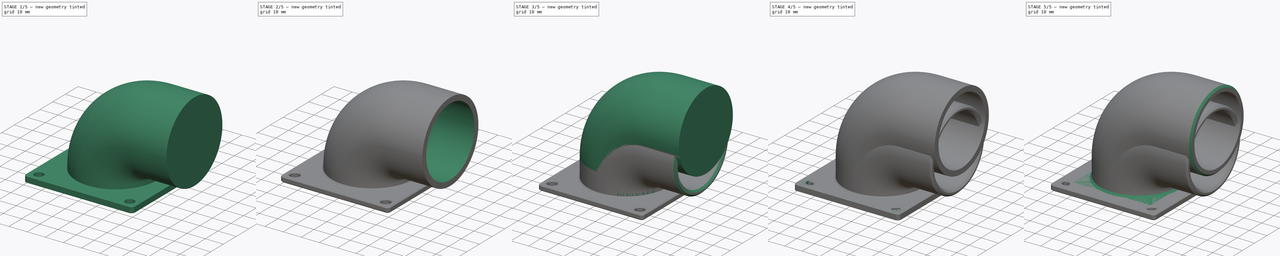
[diagram: build sequence overview — one tinted view per stage of 5, left to right]
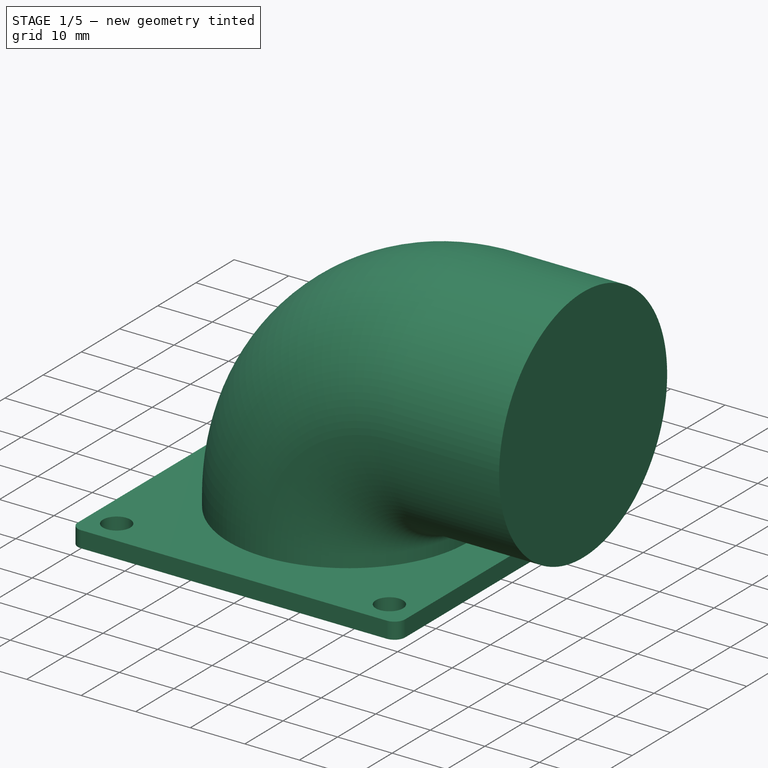
[diagram: stage 1 of 5 — iso view after this stage's code; geometry added in this stage tinted green]
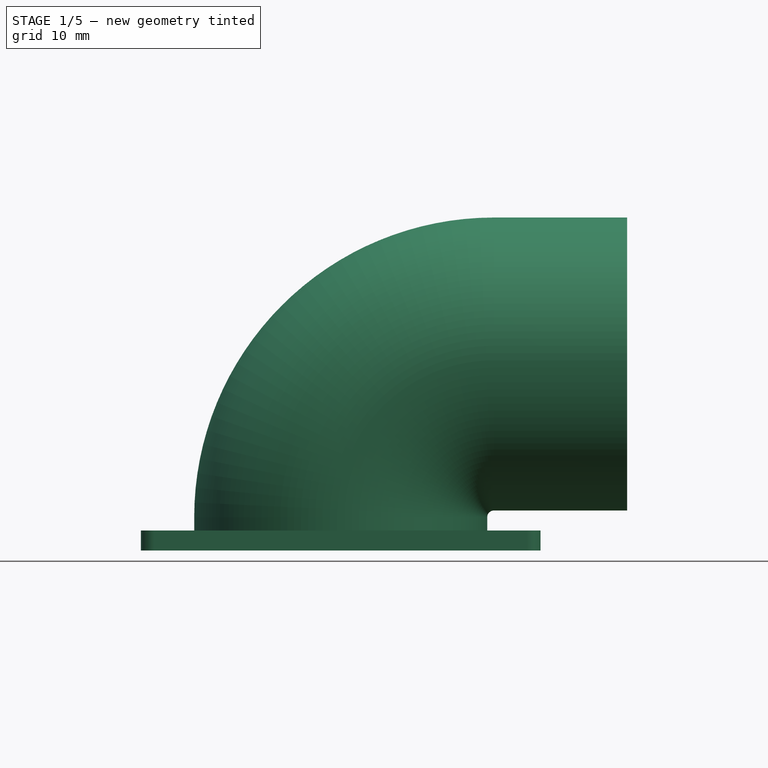
[diagram: stage 1 of 5 — front view after this stage's code; geometry added in this stage tinted green]
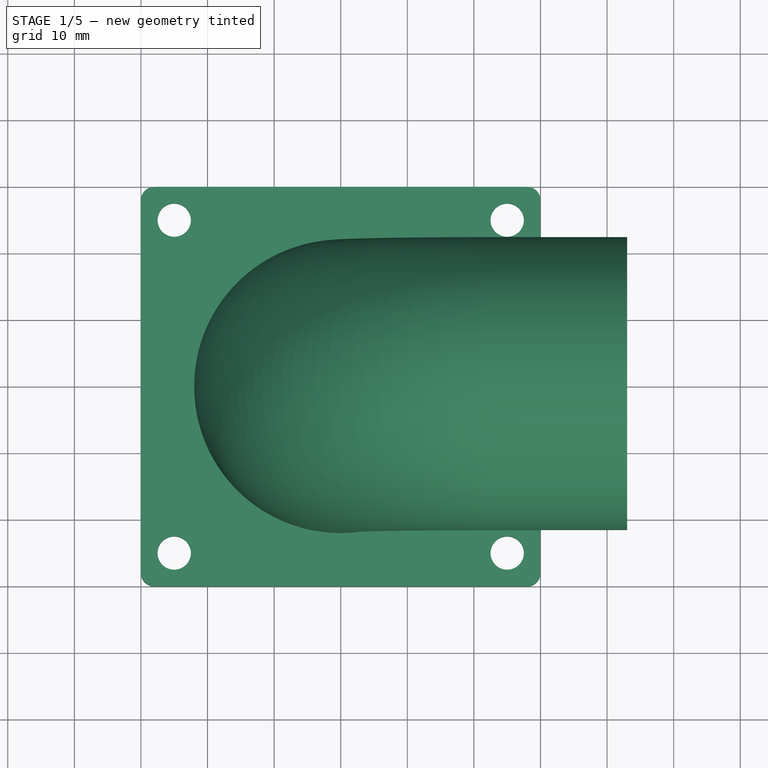
[diagram: stage 1 of 5 — top view after this stage's code; geometry added in this stage tinted green]
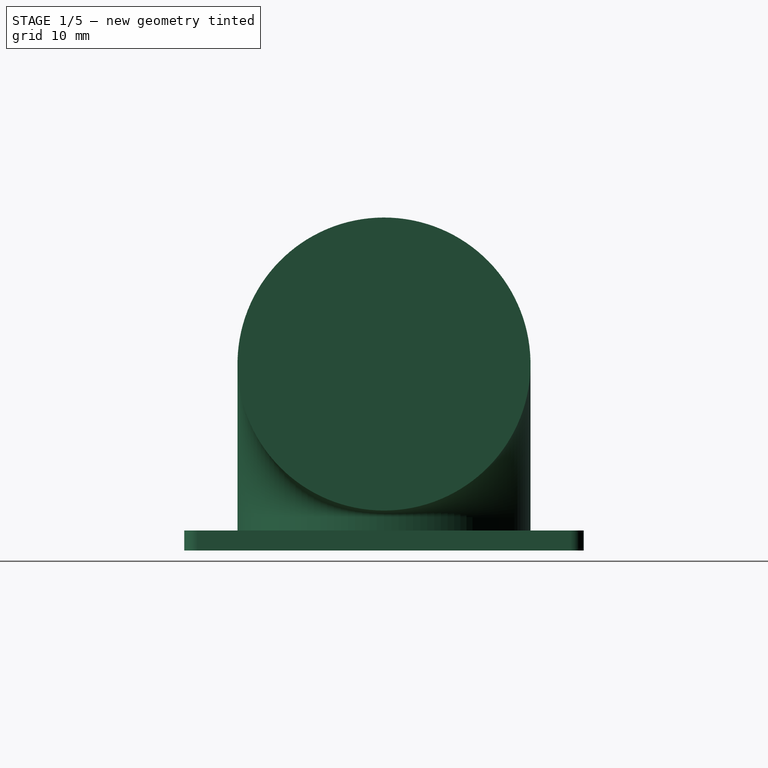
[diagram: stage 1 of 5 — right view after this stage's code; geometry added in this stage tinted green]
FCSTD DOCUMENT  (FreeCAD 1.2R20260526 (Git shallow))
Label: battery box mods
License: All rights reserved
LicenseURL: http://en.wikipedia.org/wiki/All_rights_reserved
objects: Sketcher::SketchObject×8, Part::Sweep×4, Part::Chamfer×4, Part::MultiFuse×2, Part::Cut×2, PartDesign::Pad×1, PartDesign::Body×1, PartDesign::Chamfer×1, Part::Extrusion×1, App::Point×1
note: 36 computed .brp shape members not serialized (recipe doc carries the construction recipe); baked Part::Feature solids carry a one-line shape summary decoded from their .brp

FEATURE [Sketcher::SketchObject] Sketch009
  ArcFitTolerance = 0
  ExternalTypes = [0]
  FullyConstrained = true
  MakeInternals = false
  MapMode = 5
  sketch-geometry (1):
    g0: Circle CenterX=0 CenterY=0 CenterZ=0 NormalX=0 NormalY=0 NormalZ=1 AngleXU=0 Radius=22
  constraints (2):
    c: Coincident(g0,g-1)
    c: Diameter(g0) = 44
FEATURE [Sketcher::SketchObject] Sketch010
  ArcFitTolerance = 0
  ExternalTypes = [0]
  FullyConstrained = true
  MakeInternals = false
  MapMode = 5
  Placement = pos=(0,0,0) rot=(1,0,0;1.5708rad)
  sketch-geometry (3):
    g0: LineSegment StartX=0 StartY=0 StartZ=0 EndX=0 EndY=5 EndZ=0
    g1: ArcOfCircle CenterX=23 CenterY=5 CenterZ=0 NormalX=0 NormalY=0 NormalZ=1 AngleXU=0 Radius=23 StartAngle=1.5708 EndAngle=3.14159
    g2: LineSegment StartX=23 StartY=28 StartZ=0 EndX=43 EndY=28 EndZ=0
  constraints (8):
    c: Coincident(g-1,g0)
    c: PointOnObject(g0,g-2)
    c: Tangent(g0,g1) = 1.5708
    c: Tangent(g1,g2) = 1.5708
    c: Horizontal(g2)
    c: DistanceY(g0,g1) = 5
    c: DistanceY(g1,g1) = 23
    c: DistanceX(g2,g2) = 20
FEATURE [Part::Sweep] Sweep002  label="outer tube"
  Frenet = true
  Sections = -> [Sketch009]
  Solid = true
  Spine = -> Sketch010
  Transition = 1
FEATURE [Sketcher::SketchObject] Sketch012  label="plate sketch"
  ArcFitTolerance = 0
  ExternalTypes = [0]
  FullyConstrained = true
  MakeInternals = false
  MapMode = 5
  sketch-geometry (20):
    g0: LineSegment StartX=-30 StartY=28 StartZ=0 EndX=-30 EndY=-28 EndZ=0
    g1: LineSegment StartX=-28 StartY=-30 StartZ=0 EndX=28 EndY=-30 EndZ=0
    g2: LineSegment StartX=30 StartY=-28 StartZ=0 EndX=30 EndY=28 EndZ=0
    g3: LineSegment StartX=28 StartY=30 StartZ=0 EndX=-28 EndY=30 EndZ=0
    g4: ArcOfCircle CenterX=28 CenterY=28 CenterZ=0 NormalX=0 NormalY=0 NormalZ=1 AngleXU=0 Radius=2 StartAngle=1.7e-15 EndAngle=1.5708
    g5: GeomPoint [constr] X=30 Y=30 Z=0
    g6: ArcOfCircle CenterX=-28 CenterY=28 CenterZ=0 NormalX=0 NormalY=0 NormalZ=1 AngleXU=0 Radius=2 StartAngle=1.5708 EndAngle=3.14159
    g7: GeomPoint [constr] X=-30 Y=30 Z=0
    g8: ArcOfCircle CenterX=-28 CenterY=-28 CenterZ=0 NormalX=0 NormalY=0 NormalZ=1 AngleXU=0 Radius=2 StartAngle=3.14159 EndAngle=4.71239
    g9: GeomPoint [constr] X=-30 Y=-30 Z=0
    g10: ArcOfCircle CenterX=28 CenterY=-28 CenterZ=0 NormalX=0 NormalY=0 NormalZ=1 AngleXU=0 Radius=2 StartAngle=4.71239 EndAngle=6.28319
    g11: GeomPoint [constr] X=30 Y=-30 Z=0
    g12: Circle CenterX=-25 CenterY=25 CenterZ=0 NormalX=0 NormalY=0 NormalZ=1 AngleXU=0 Radius=2.5
    g13: Circle CenterX=25 CenterY=25 CenterZ=0 NormalX=0 NormalY=0 NormalZ=1 AngleXU=0 Radius=2.5
    g14: Circle CenterX=-25 CenterY=-25 CenterZ=0 NormalX=0 NormalY=0 NormalZ=1 AngleXU=0 Radius=2.5
    g15: Circle CenterX=25 CenterY=-25 CenterZ=0 NormalX=0 NormalY=0 NormalZ=1 AngleXU=0 Radius=2.5
    g16: LineSegment [constr] StartX=-25 StartY=25 StartZ=0 EndX=-25 EndY=-25 EndZ=0
    g17: LineSegment [constr] StartX=-25 StartY=-25 StartZ=0 EndX=25 EndY=-25 EndZ=0
    g18: LineSegment [constr] StartX=25 StartY=-25 StartZ=0 EndX=25 EndY=25 EndZ=0
    g19: LineSegment [constr] StartX=25 StartY=25 StartZ=0 EndX=-25 EndY=25 EndZ=0
  constraints (46):
    c: Vertical(g0)
    c: Vertical(g2)
    c: Horizontal(g1)
    c: Horizontal(g3)
    c: Distance(g7,g5) = 60
    c: Distance(g9,g7) = 60
    c: Symmetric(g9,g5,g-1)
    c: PointOnObject(g5,g3)
    c: PointOnObject(g5,g2)
    c: Tangent(g3,g4) = -1.5708
    c: Tangent(g2,g4) = -1.5708
    c: PointOnObject(g7,g3)
    c: PointOnObject(g7,g0)
    c: Tangent(g3,g6) = -1.5708
    c: Tangent(g0,g6) = -1.5708
    c: PointOnObject(g9,g0)
    c: PointOnObject(g9,g1)
    c: Tangent(g0,g8) = -1.5708
    c: Tangent(g1,g8) = -1.5708
    c: PointOnObject(g11,g1)
    c: PointOnObject(g11,g2)
    c: Tangent(g1,g10) = -1.5708
    c: Tangent(g2,g10) = -1.5708
    c: Equal(g4,g6)
    c: Equal(g4,g8)
    c: Equal(g4,g10)
    c: Radius(g4) = 2
    c: Coincident(g16,g17)
    c: Coincident(g17,g18)
    c: Coincident(g18,g19)
    c: Coincident(g19,g16)
    c: Vertical(g16)
    c: Vertical(g18)
    c: Horizontal(g17)
    c: Horizontal(g19)
    c: Coincident(g16,g12)
    c: Coincident(g18,g13)
    c: Coincident(g15,g17)
    c: Coincident(g16,g14)
    c: Symmetric(g14,g13,g-1)
    c: Equal(g19,g18)
    c: Equal(g12,g13)
    c: Equal(g12,g14)
    c: Equal(g12,g15)
    c: Diameter(g12) = 5
    c: DistanceX(g19,g19) = 50
FEATURE [Part::Extrusion] Extrude  label="plate"
  Base = -> Sketch012
  Dir = (0,0,1)
  DirMode = 2
  FaceMakerClass = Part::FaceMakerBullseye
  FaceMakerMode = 3
  InnerWireTaper = 0
  LengthFwd = 3
  LengthRev = 0
  Solid = true
  Symmetric = false
FEATURE [Part::MultiFuse] Fusion001  label="plate and outer"
  Shapes = -> [Extrude,Sweep002]
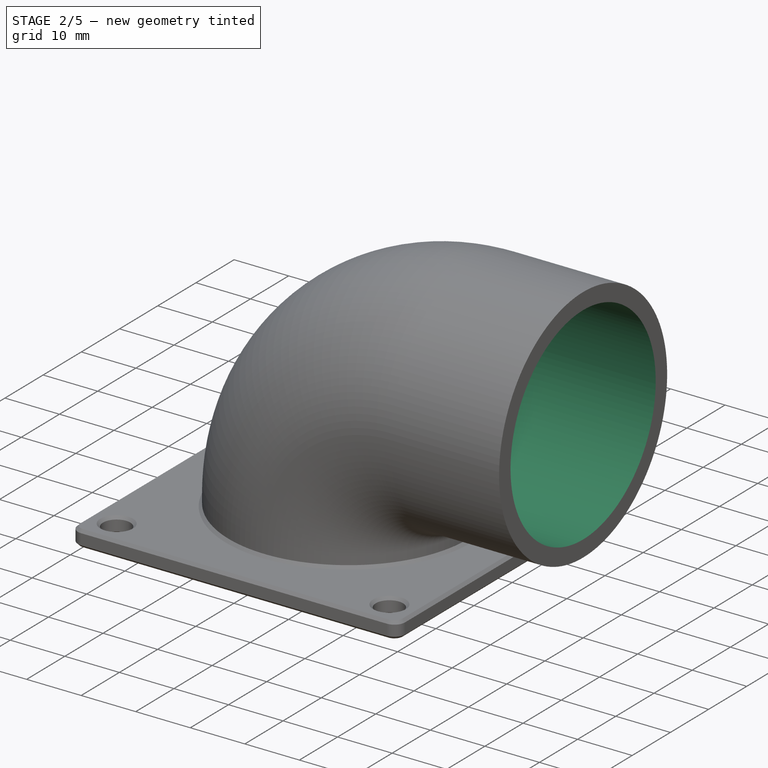
[diagram: stage 2 of 5 — iso view after this stage's code; geometry added in this stage tinted green]
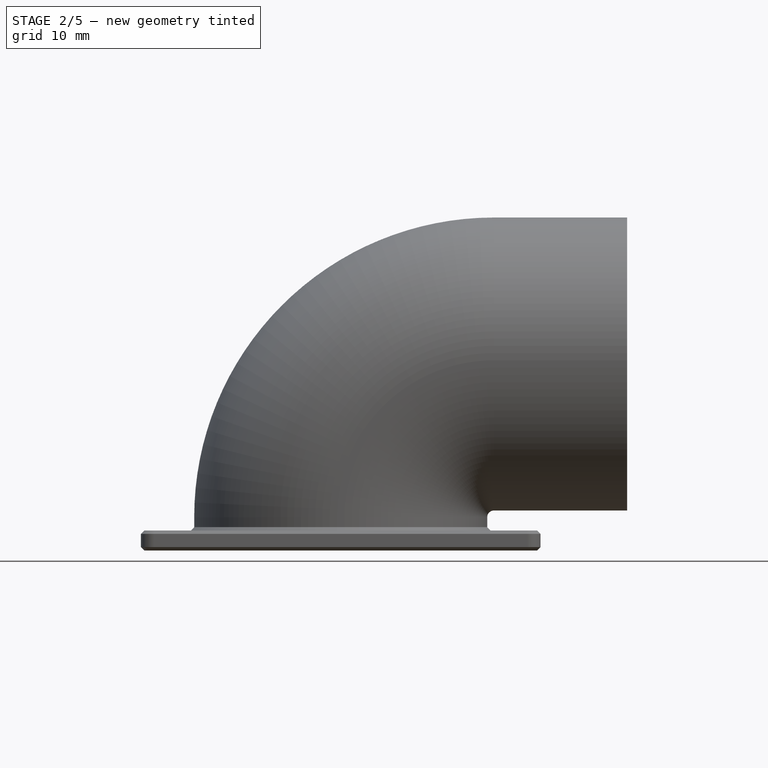
[diagram: stage 2 of 5 — front view after this stage's code; geometry added in this stage tinted green]
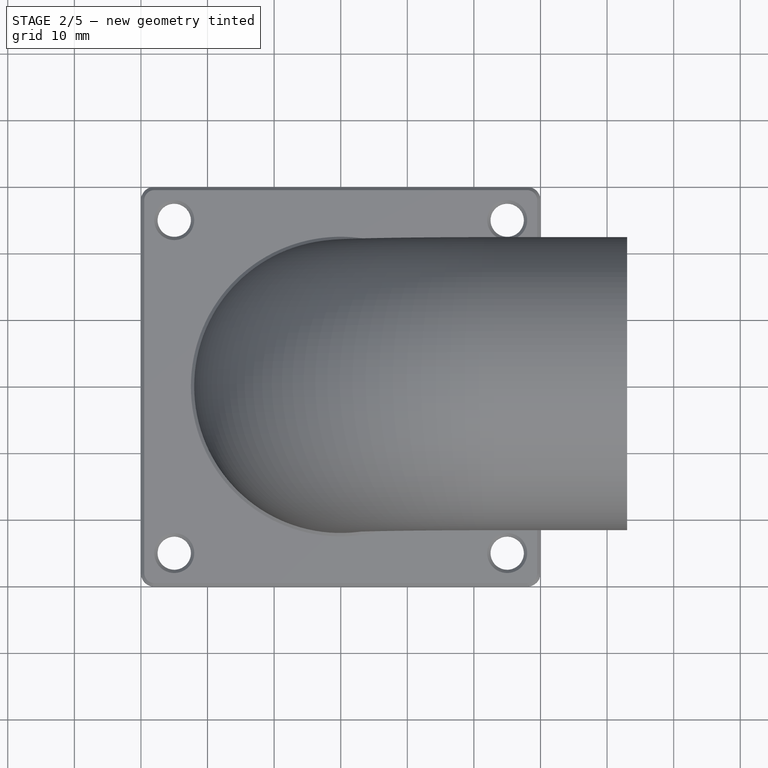
[diagram: stage 2 of 5 — top view after this stage's code; geometry added in this stage tinted green]
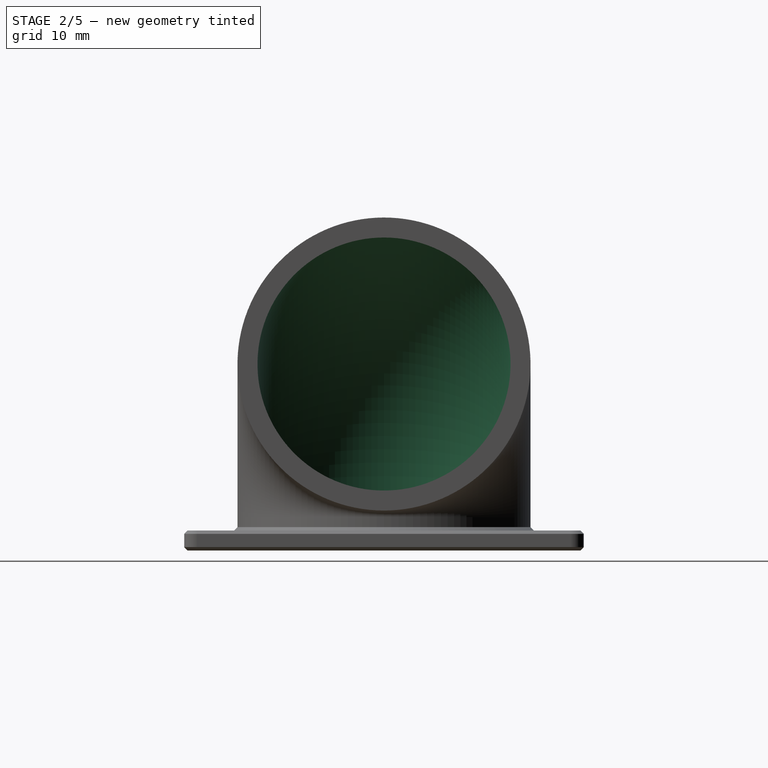
[diagram: stage 2 of 5 — right view after this stage's code; geometry added in this stage tinted green]
FEATURE [Sketcher::SketchObject] Sketch011
  ArcFitTolerance = 0
  ExternalTypes = [0]
  FullyConstrained = true
  MakeInternals = false
  sketch-geometry (1):
    g0: Circle CenterX=0 CenterY=0 CenterZ=0 NormalX=0 NormalY=0 NormalZ=1 AngleXU=0 Radius=19
  constraints (2):
    c: Coincident(g0,g-1)
    c: Diameter(g0) = 38
FEATURE [Part::Sweep] Sweep003  label="inner tube"
  Frenet = true
  Sections = -> [Sketch011]
  Solid = true
  Spine = -> Sketch010
  Transition = 1
FEATURE [Part::Cut] Cut001  label="plate minus inner"
  Base = -> Fusion001
  Refine = true
  Tool = -> Sweep003
FEATURE [Part::Chamfer] Chamfer003
  Base = -> Cut001
  EdgeLinks = -> Cut001 [Edge3,Edge4,Edge6,Edge7,Edge9,Edge10,Edge11,Edge12,Edge13,Edge14,Edge15,Edge16,Edge17,Edge18,Edge19,Edge20,Edge22,Edge24,Edge26,Edge28,Edge29,Edge31,Edge33,Edge35,Edge37,Edge46]
  Edges = 26 edges r=0.5: [Edge3,Edge4,Edge6,Edge7,Edge9,Edge10,Edge11,Edge12,Edge13,Edge14,Edge15,Edge16,Edge17,Edge18,Edge19,Edge20,Edge22,Edge24,Edge26,Edge28,Edge29,Edge31,Edge33,Edge35,Edge37,Edge46]
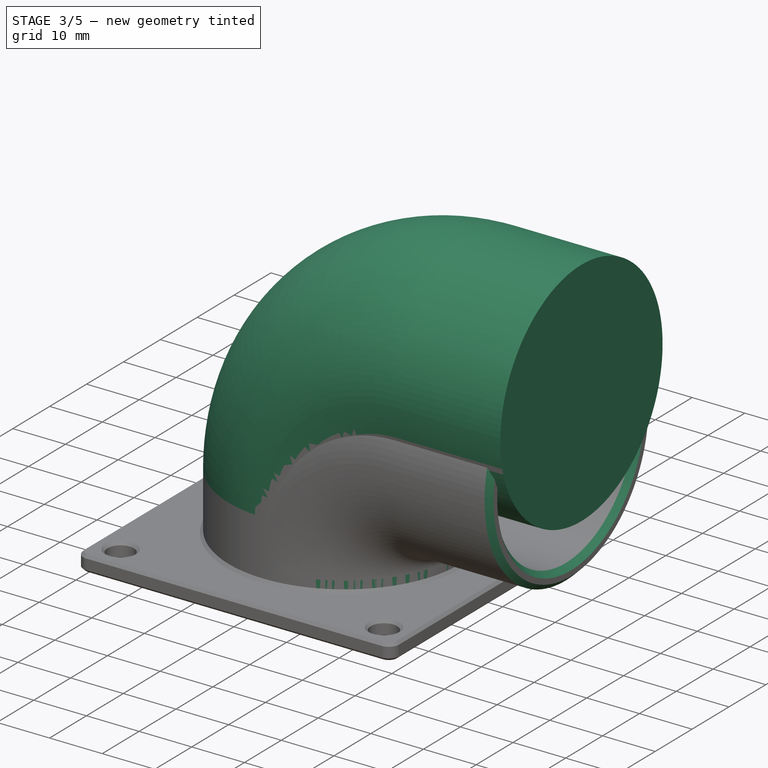
[diagram: stage 3 of 5 — iso view after this stage's code; geometry added in this stage tinted green]
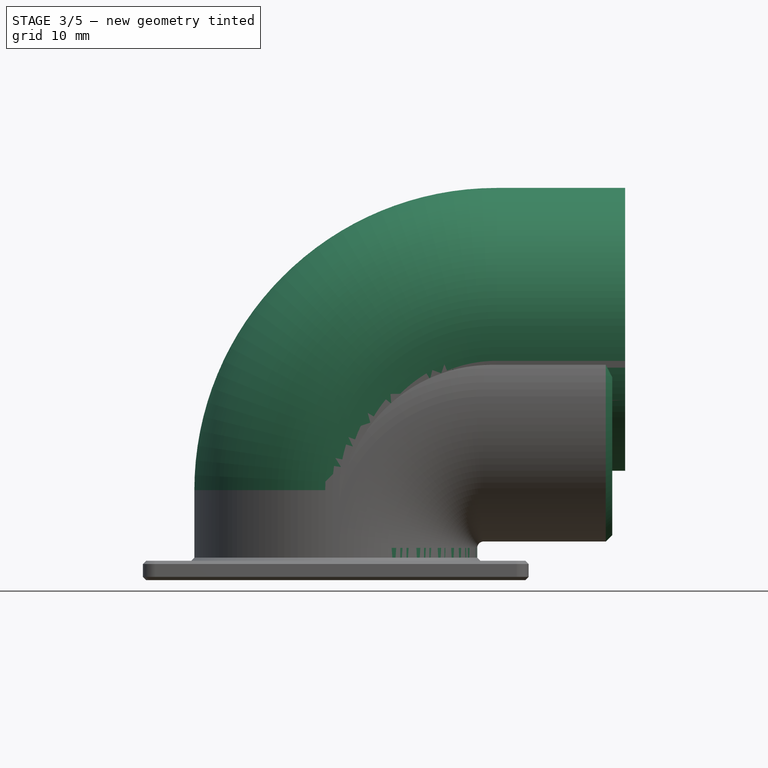
[diagram: stage 3 of 5 — front view after this stage's code; geometry added in this stage tinted green]
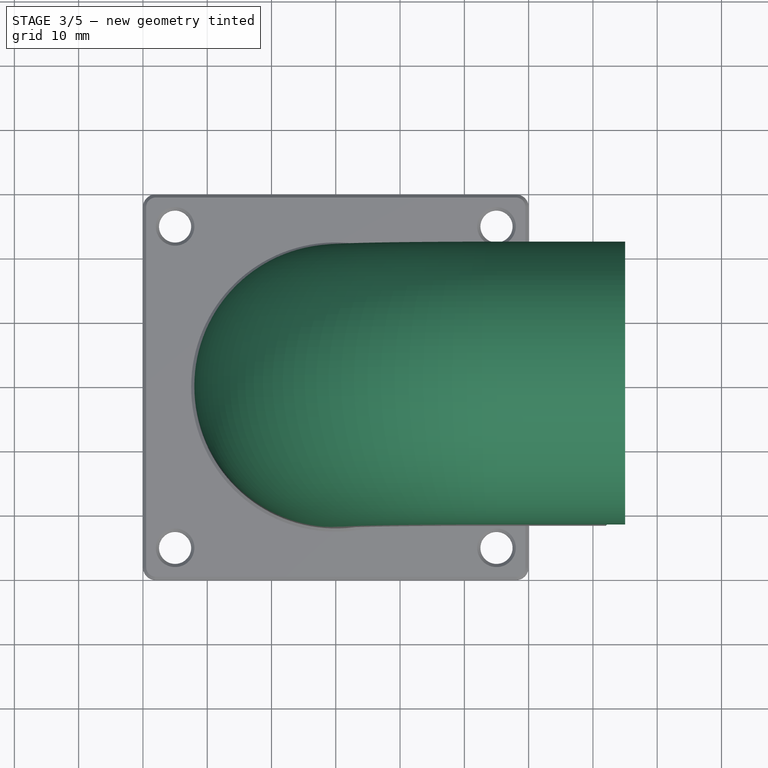
[diagram: stage 3 of 5 — top view after this stage's code; geometry added in this stage tinted green]
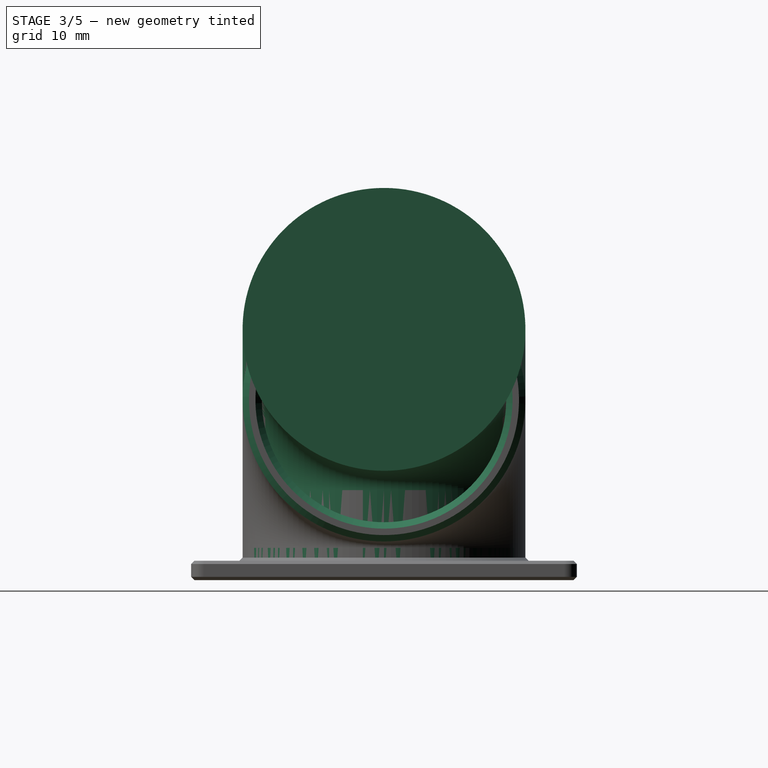
[diagram: stage 3 of 5 — right view after this stage's code; geometry added in this stage tinted green]
FEATURE [Sketcher::SketchObject] Sketch003
  ArcFitTolerance = 0
  ExternalTypes = [0]
  FullyConstrained = true
  MakeInternals = false
  MapMode = 5
  sketch-geometry (1):
    g0: Circle CenterX=0 CenterY=0 CenterZ=0 NormalX=0 NormalY=0 NormalZ=1 AngleXU=0 Radius=22
  constraints (2):
    c: Diameter(g0) = 44
    c: Coincident(g0,g-1)
FEATURE [Sketcher::SketchObject] Sketch004
  ArcFitTolerance = 0
  ExternalTypes = [0]
  FullyConstrained = true
  MakeInternals = false
  MapMode = 5
  Placement = pos=(0,0,0) rot=(1,0,0;1.5708rad)
  sketch-geometry (3):
    g0: LineSegment StartX=0 StartY=0 StartZ=0 EndX=0 EndY=14 EndZ=0
    g1: ArcOfCircle CenterX=25 CenterY=14 CenterZ=0 NormalX=0 NormalY=0 NormalZ=1 AngleXU=0 Radius=25 StartAngle=1.5708 EndAngle=3.14159
    g2: LineSegment StartX=25 StartY=39 StartZ=0 EndX=45 EndY=39 EndZ=0
  constraints (8):
    c: Coincident(g-1,g0)
    c: PointOnObject(g0,g-2)
    c: Tangent(g0,g1) = 1.5708
    c: Tangent(g1,g2) = 1.5708
    c: Angle(g0,g2) = 1.5708
    c: Diameter(g1) = 50
    c: DistanceY(g0,g0) = 14
    c: DistanceX(g2,g2) = 20
FEATURE [Sketcher::SketchObject] Sketch005
  ArcFitTolerance = 0
  ExternalTypes = [0]
  FullyConstrained = true
  MakeInternals = false
  sketch-geometry (1):
    g0: Circle CenterX=0 CenterY=0 CenterZ=0 NormalX=0 NormalY=0 NormalZ=1 AngleXU=0 Radius=19
  constraints (2):
    c: Coincident(g0,g-1)
    c: Diameter(g0) = 38
FEATURE [Part::Sweep] Sweep
  Frenet = true
  Sections = -> [Sketch003]
  Solid = true
  Spine = -> Sketch004 [Edge1,Edge2,Edge3]
  Transition = 1
FEATURE [Part::Sweep] Sweep001
  Frenet = true
  Sections = -> [Sketch005]
  Solid = true
  Spine = -> Sketch004
  Transition = 1
FEATURE [Part::Chamfer] Chamfer004  label="hose bend001"
  Base = -> Chamfer003
  EdgeLinks = -> Chamfer003 [Edge100,Edge102]
  Edges = 2 edges r=1: [Edge100,Edge102]
FEATURE [App::Point] Origin001  label="Origin-Point"
  Role = Origin
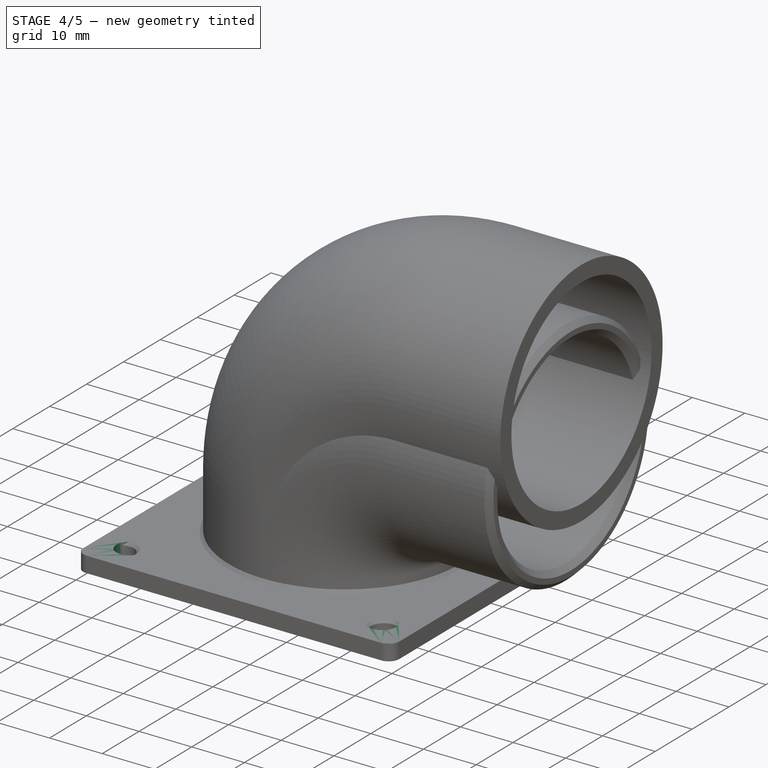
[diagram: stage 4 of 5 — iso view after this stage's code; geometry added in this stage tinted green]
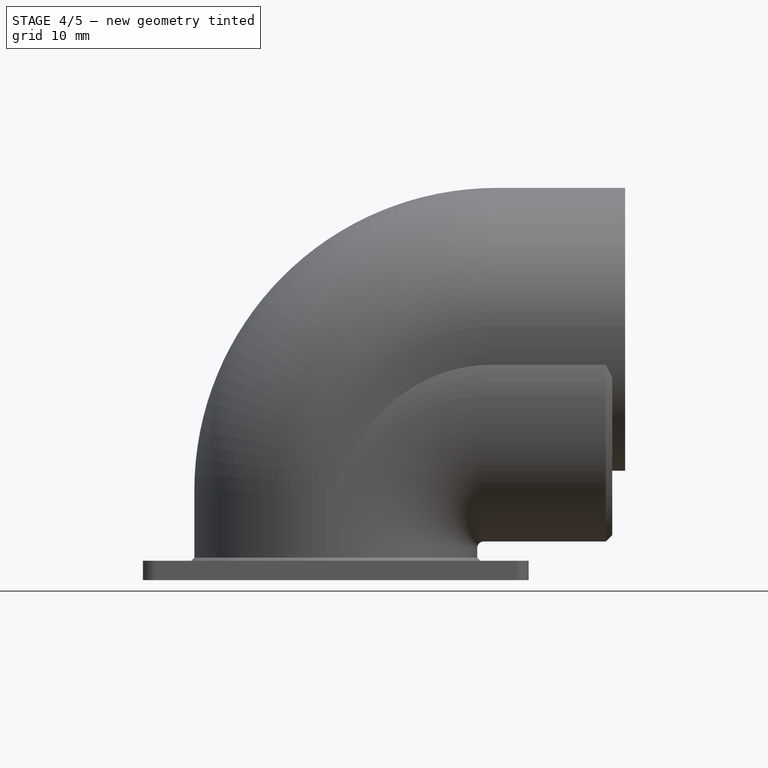
[diagram: stage 4 of 5 — front view after this stage's code; geometry added in this stage tinted green]
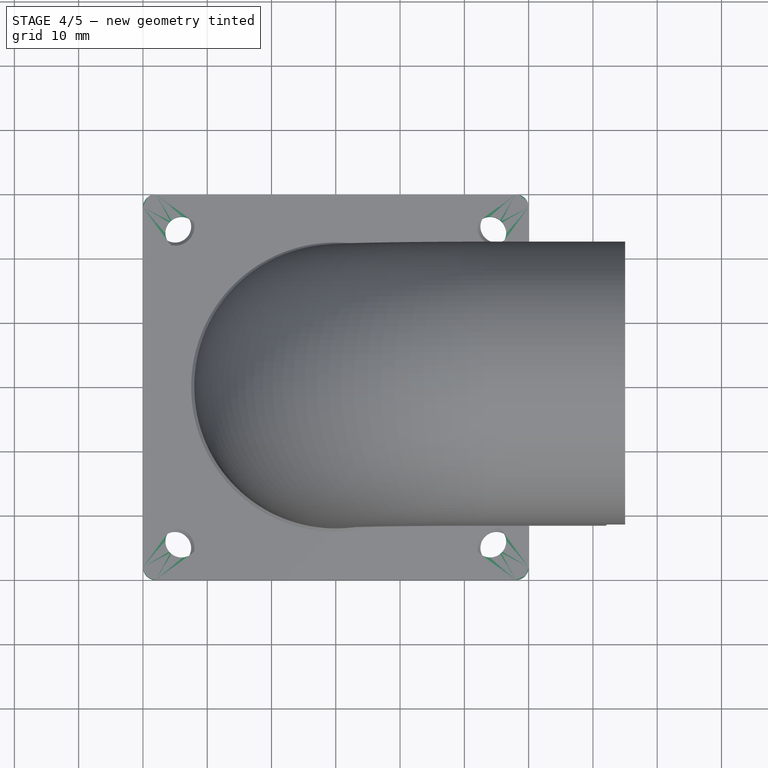
[diagram: stage 4 of 5 — top view after this stage's code; geometry added in this stage tinted green]
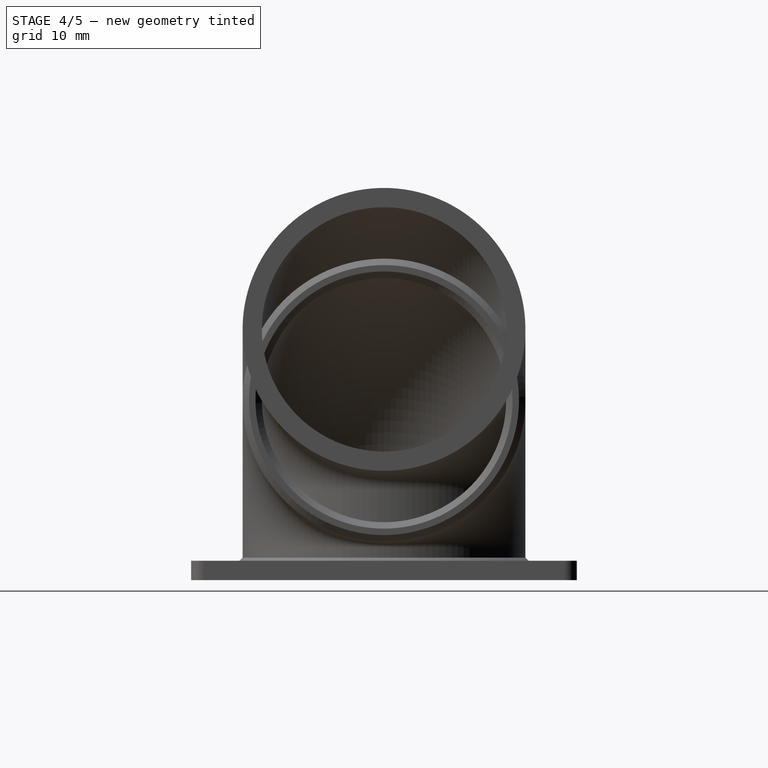
[diagram: stage 4 of 5 — right view after this stage's code; geometry added in this stage tinted green]
FEATURE [Sketcher::SketchObject] Sketch
  ArcFitTolerance = 0
  AttachmentSupport = -> [XY_Plane]
  ExternalTypes = [0]
  FullyConstrained = true
  MakeInternals = false
  MapMode = 5
  sketch-geometry (20):
    g0: LineSegment StartX=-30 StartY=28 StartZ=0 EndX=-30 EndY=-28 EndZ=0
    g1: LineSegment StartX=-28 StartY=-30 StartZ=0 EndX=28 EndY=-30 EndZ=0
    g2: LineSegment StartX=30 StartY=-28 StartZ=0 EndX=30 EndY=28 EndZ=0
    g3: LineSegment StartX=28 StartY=30 StartZ=0 EndX=-28 EndY=30 EndZ=0
    g4: LineSegment [constr] StartX=-24 StartY=24 StartZ=0 EndX=-24 EndY=-24 EndZ=0
    g5: LineSegment [constr] StartX=-24 StartY=-24 StartZ=0 EndX=24 EndY=-24 EndZ=0
    g6: LineSegment [constr] StartX=24 StartY=-24 StartZ=0 EndX=24 EndY=24 EndZ=0
    g7: LineSegment [constr] StartX=24 StartY=24 StartZ=0 EndX=-24 EndY=24 EndZ=0
    g8: Circle CenterX=-24 CenterY=24 CenterZ=0 NormalX=0 NormalY=0 NormalZ=1 AngleXU=0 Radius=2.5
    g9: Circle CenterX=24 CenterY=24 CenterZ=0 NormalX=0 NormalY=0 NormalZ=1 AngleXU=0 Radius=2.5
    g10: Circle CenterX=24 CenterY=-24 CenterZ=0 NormalX=0 NormalY=0 NormalZ=1 AngleXU=0 Radius=2.5
    g11: Circle CenterX=-24 CenterY=-24 CenterZ=0 NormalX=0 NormalY=0 NormalZ=1 AngleXU=0 Radius=2.5
    g12: ArcOfCircle CenterX=-28 CenterY=28 CenterZ=0 NormalX=0 NormalY=0 NormalZ=1 AngleXU=0 Radius=2 StartAngle=1.5708 EndAngle=3.14159
    g13: GeomPoint [constr] X=-30 Y=30 Z=0
    g14: ArcOfCircle CenterX=28 CenterY=28 CenterZ=0 NormalX=0 NormalY=0 NormalZ=1 AngleXU=0 Radius=2 StartAngle=4e-16 EndAngle=1.5708
    g15: GeomPoint [constr] X=30 Y=30 Z=0
    g16: ArcOfCircle CenterX=28 CenterY=-28 CenterZ=0 NormalX=0 NormalY=0 NormalZ=1 AngleXU=0 Radius=2 StartAngle=4.71239 EndAngle=6.28319
    g17: GeomPoint [constr] X=30 Y=-30 Z=0
    g18: ArcOfCircle CenterX=-28 CenterY=-28 CenterZ=0 NormalX=0 NormalY=0 NormalZ=1 AngleXU=0 Radius=2 StartAngle=3.14159 EndAngle=4.71239
    g19: GeomPoint [constr] X=-30 Y=-30 Z=0
  constraints (46):
    c: Vertical(g0)
    c: Vertical(g2)
    c: Horizontal(g1)
    c: Horizontal(g3)
    c: DistanceX(g13,g15) = 60
    c: Symmetric(g19,g15,g-1)
    c: Coincident(g4,g5)
    c: Coincident(g5,g6)
    c: Coincident(g6,g7)
    c: Coincident(g7,g4)
    c: Vertical(g4)
    c: Vertical(g6)
    c: Horizontal(g5)
    c: Horizontal(g7)
    c: Coincident(g8,g4)
    c: Coincident(g9,g6)
    c: Coincident(g10,g5)
    c: Coincident(g11,g4)
    c: Equal(g8,g9)
    c: Equal(g8,g10)
    c: Equal(g8,g11)
    c: Diameter(g8) = 5
    c: Symmetric(g4,g6,g-1)
    c: DistanceY(g4,g13) = 6
    c: DistanceX(g13,g4) = 6
    c: PointOnObject(g13,g3)
    c: PointOnObject(g13,g0)
    c: Tangent(g3,g12) = -1.5708
    c: Tangent(g0,g12) = -1.5708
    c: PointOnObject(g15,g3)
    c: PointOnObject(g15,g2)
    c: Tangent(g3,g14) = -1.5708
    c: Tangent(g2,g14) = -1.5708
    c: PointOnObject(g17,g2)
    c: PointOnObject(g17,g1)
    c: Tangent(g2,g16) = -1.5708
    c: Tangent(g1,g16) = -1.5708
    c: PointOnObject(g19,g1)
    c: PointOnObject(g19,g0)
    c: Tangent(g1,g18) = -1.5708
    c: Tangent(g0,g18) = -1.5708
    c: Radius(g12) = 2
    c: Equal(g12,g14)
    c: Equal(g16,g14)
    c: Equal(g16,g18)
    c: Equal(g3,g2)
FEATURE [PartDesign::Pad] Pad
  Direction = (0,0,1)
  FuzzyTolerance = 0
  Length = 3
  Length2 = 10
  Profile = -> Sketch
  ReferenceAxis = -> Sketch [N_Axis]
  SideType = 0
  Suppressed = false
  Type = 0
  Type2 = 0
FEATURE [Part::MultiFuse] Fusion
  Shapes = -> [Sweep,Body]
FEATURE [Part::Cut] Cut
  Base = -> Fusion
  Refine = true
  Tool = -> Sweep001
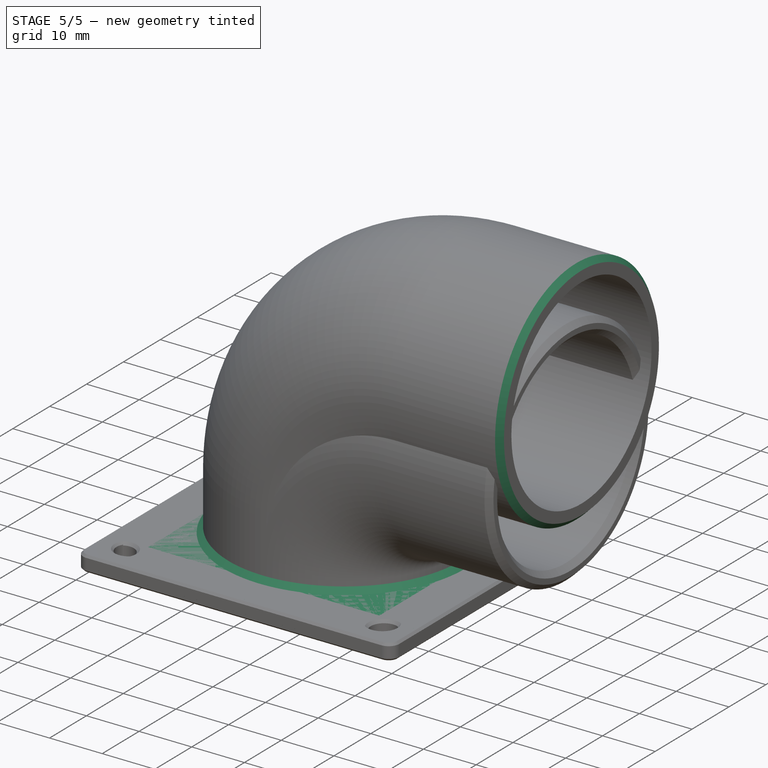
[diagram: stage 5 of 5 — iso view after this stage's code; geometry added in this stage tinted green]
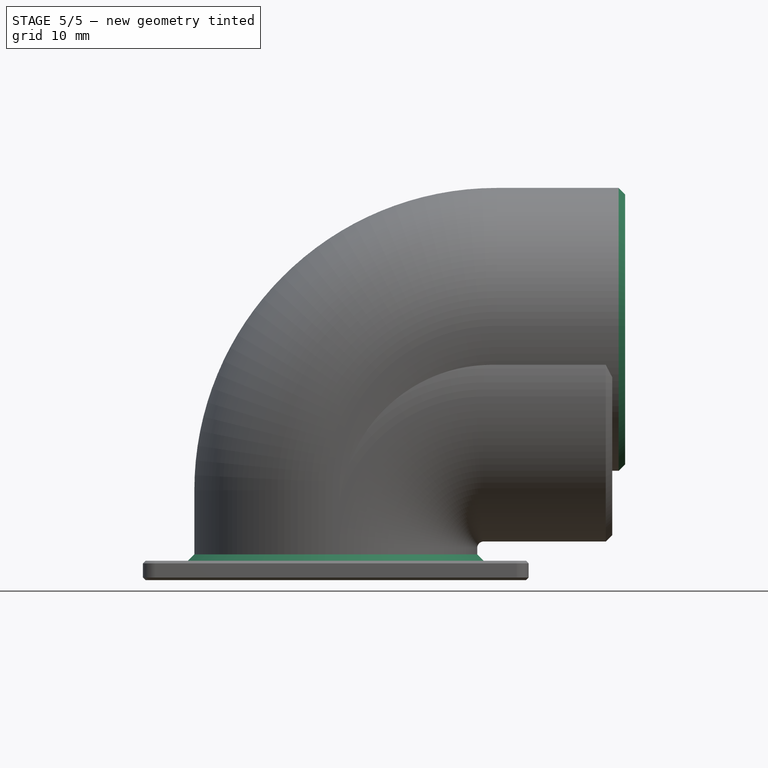
[diagram: stage 5 of 5 — front view after this stage's code; geometry added in this stage tinted green]
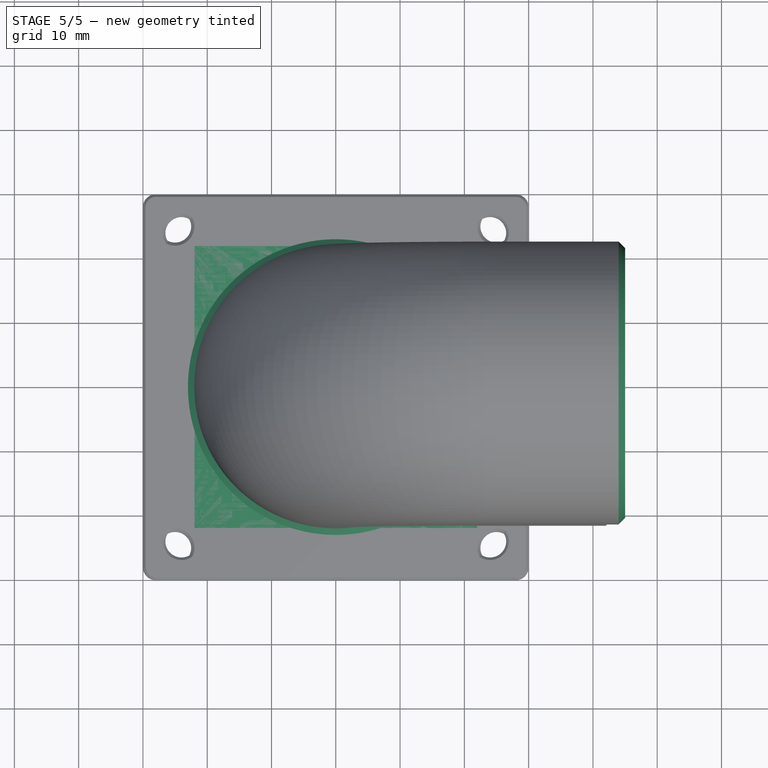
[diagram: stage 5 of 5 — top view after this stage's code; geometry added in this stage tinted green]
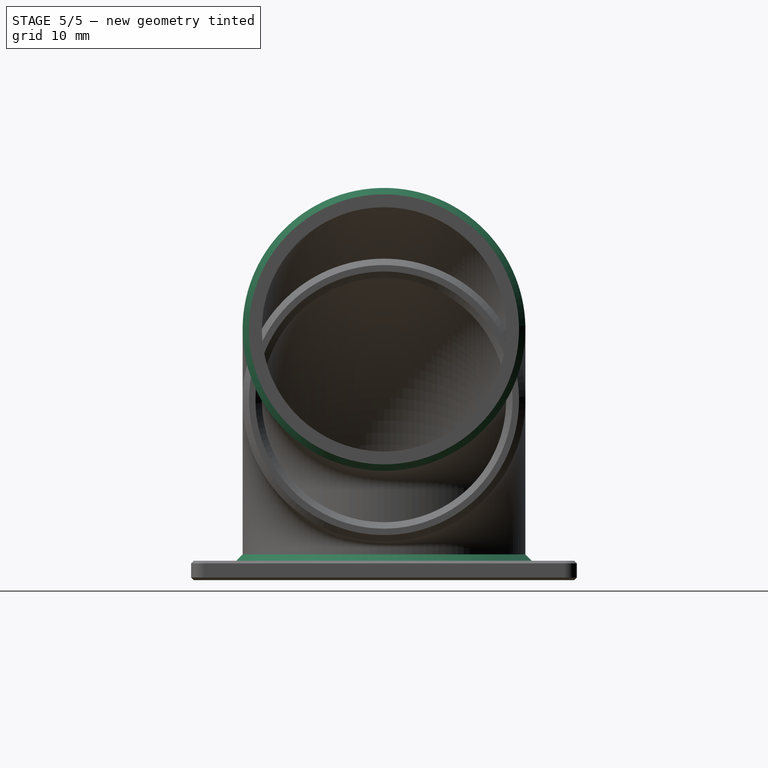
[diagram: stage 5 of 5 — right view after this stage's code; geometry added in this stage tinted green]
FEATURE [PartDesign::Body] Body  label="hole cover"
  AllowCompound = false
  Group = -> [Sketch,Pad]
  Origin = -> Origin
  Tip = -> Pad
FEATURE [PartDesign::Chamfer] Chamfer
  Angle = 45
  Base = -> Pad [Face14,Face13]
  BaseFeature = -> Pad
  ChamferType = 0
  FlipDirection = false
  FuzzyTolerance = 0
  Size = 0.4
  Size2 = 1
  SupportTransform = false
  Suppressed = false
  UseAllEdges = false
FEATURE [Part::Chamfer] Chamfer001
  Base = -> Cut
  EdgeLinks = -> Cut [Edge3,Edge4,Edge6,Edge7,Edge9,Edge10,Edge12,Edge13,Edge15,Edge16,Edge18,Edge19,Edge21,Edge22,Edge23,Edge24,Edge25,Edge26,Edge27,Edge28,Edge29,Edge31,Edge33,Edge35,Edge37,Edge45]
  Edges = 26 edges r=1: [Edge3,Edge4,Edge6,Edge7,Edge9,Edge10,Edge12,Edge13,Edge15,Edge16,Edge18,Edge19,Edge21,Edge22,Edge23,Edge24,Edge25,Edge26,Edge27,Edge28,Edge29,Edge31,Edge33,Edge35,Edge37,Edge45]
FEATURE [Part::Chamfer] Chamfer002  label="hose bend"
  Base = -> Chamfer001
  EdgeLinks = -> Chamfer001 [Edge102]
  Edges = 1 edges r=1: [Edge102]
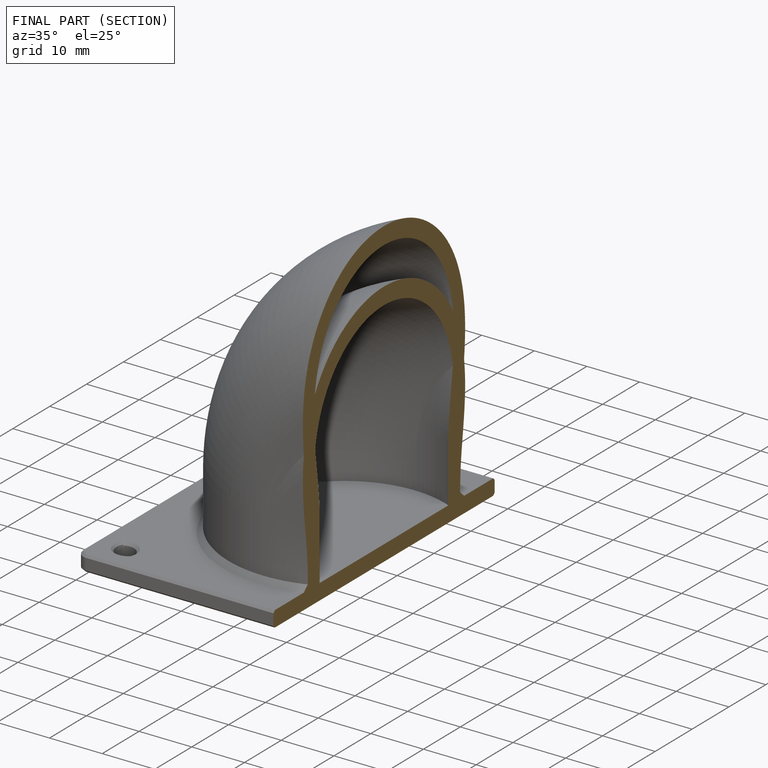
[diagram: finished part — half-section view (interior)]
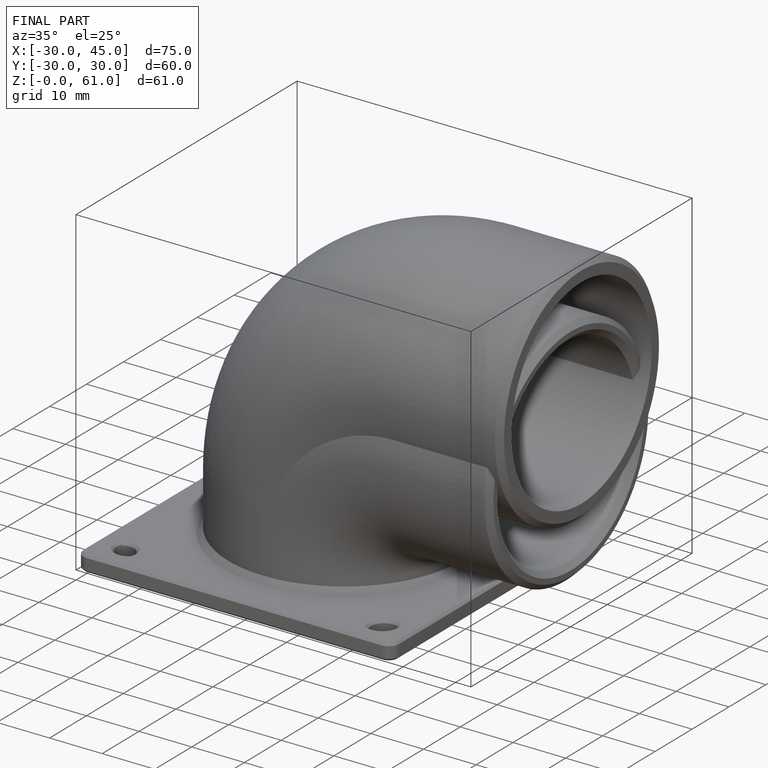
[diagram: finished part — iso view with bounding-box wireframe]
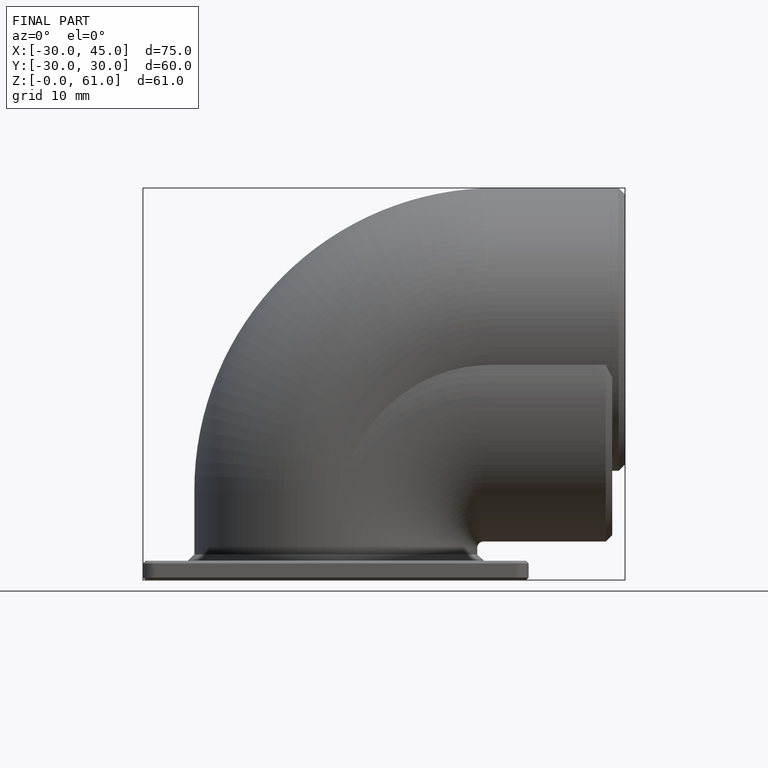
[diagram: finished part — front view with bounding-box wireframe]
